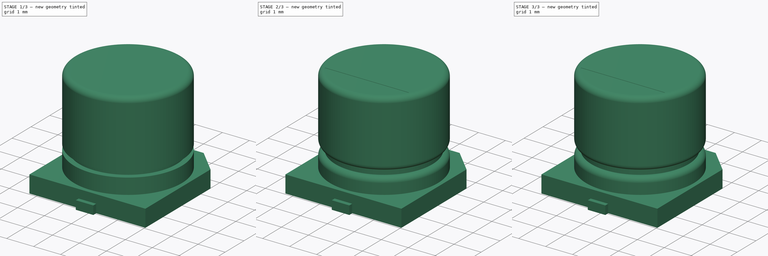
[diagram: build sequence overview — one tinted view per stage of 3, left to right]
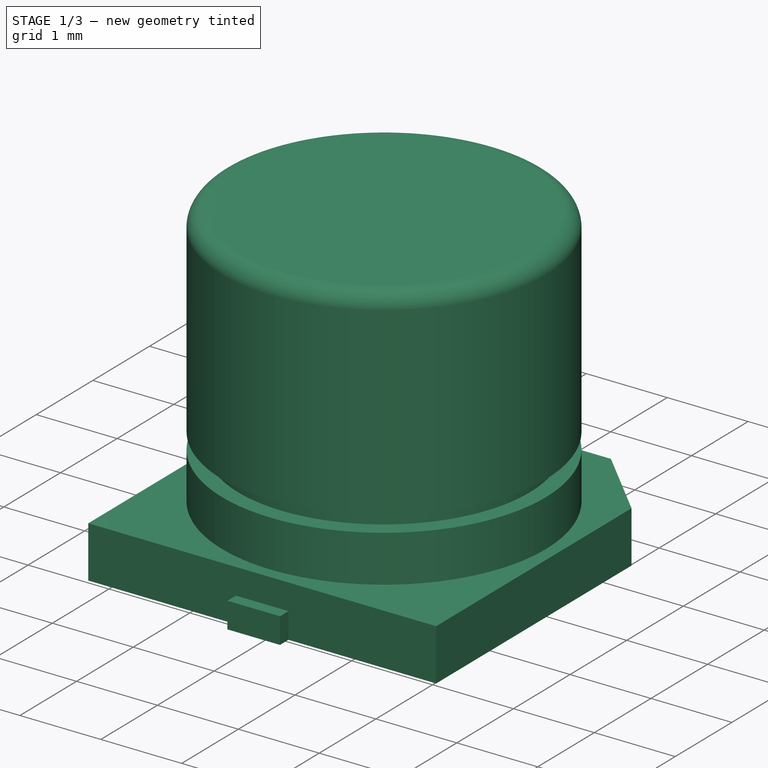
[diagram: stage 1 of 3 — iso view after this stage's code; geometry added in this stage tinted green]
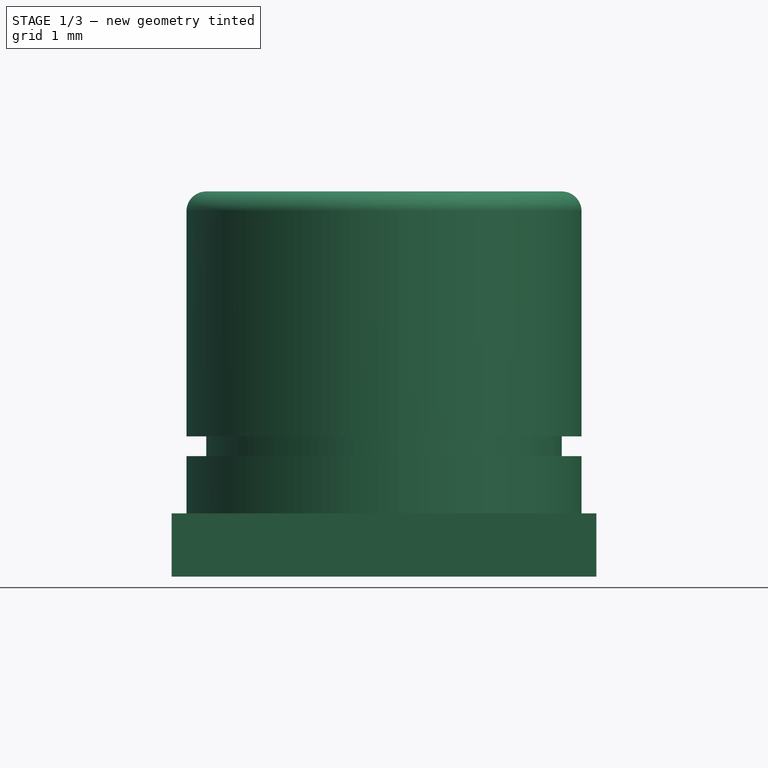
[diagram: stage 1 of 3 — front view after this stage's code; geometry added in this stage tinted green]
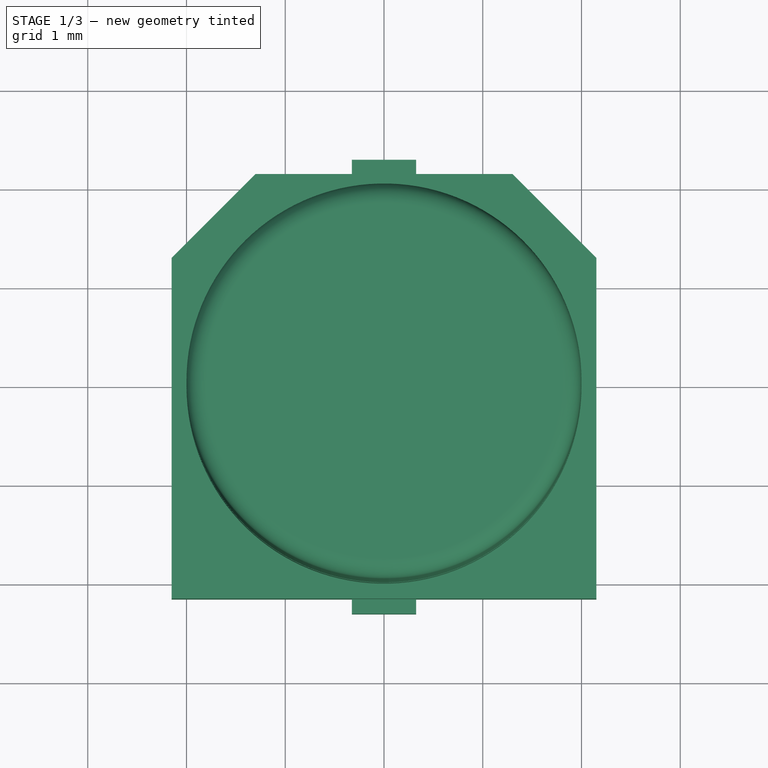
[diagram: stage 1 of 3 — top view after this stage's code; geometry added in this stage tinted green]
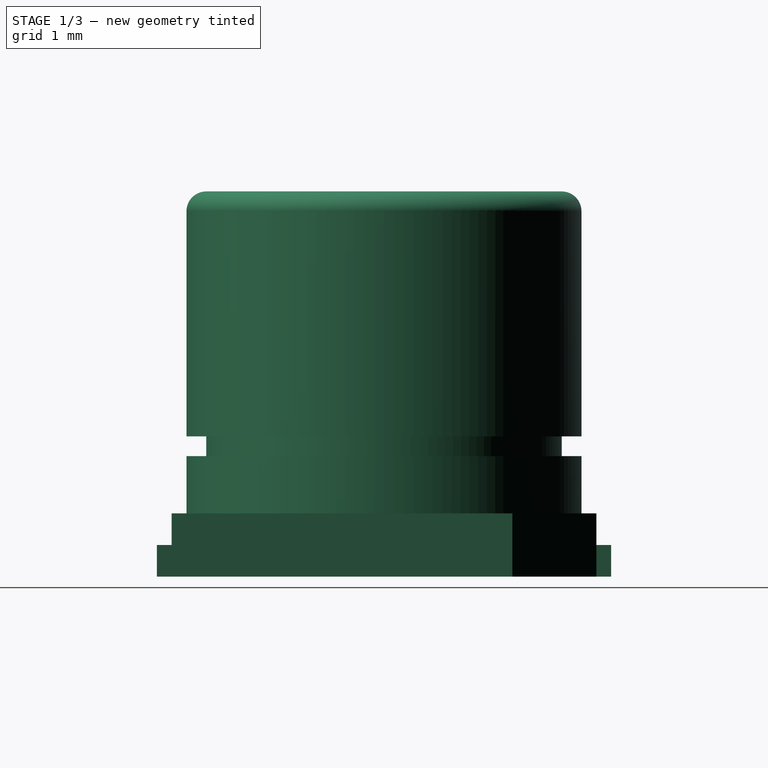
[diagram: stage 1 of 3 — right view after this stage's code; geometry added in this stage tinted green]
FCSTD DOCUMENT  (FreeCAD 0.14R3702 (Git))
Label: capsmd4x3
License: CC-BY 3.0
LicenseURL: http://creativecommons.org/licenses/by/3.0/
objects: Sketcher::SketchObject×5, Part::Feature×3, Part::Fillet×2, PartDesign::Pad×2, PartDesign::Pocket×2, PartDesign::Revolution×1, App::DocumentObjectGroup×1, Part::Compound×1
note: 21 computed .brp shape members not serialized (recipe doc carries the construction recipe); baked Part::Feature solids carry a one-line shape summary decoded from their .brp

FEATURE [Sketcher::SketchObject] Sketch  label="capsmd4x3-sketch"
  Placement = pos=(0,0,0) rot=(1,0,0;1.5708rad)
  sketch-geometry (8):
    g0: LineSegment StartX=0 StartY=0 StartZ=0 EndX=-2 EndY=0 EndZ=0
    g1: LineSegment StartX=-2 StartY=0 StartZ=0 EndX=-2 EndY=0.58 EndZ=0
    g2: LineSegment StartX=-1.8 StartY=0.58 StartZ=0 EndX=-1.8 EndY=0.78 EndZ=0
    g3: LineSegment StartX=-2 StartY=0.78 StartZ=0 EndX=-2 EndY=3.26 EndZ=0
    g4: LineSegment StartX=-2 StartY=3.26 StartZ=0 EndX=0 EndY=3.26 EndZ=0
    g5: LineSegment StartX=0 StartY=3.26 StartZ=0 EndX=0 EndY=0 EndZ=0
    g6: LineSegment StartX=-2 StartY=0.78 StartZ=0 EndX=-1.8 EndY=0.78 EndZ=0
    g7: LineSegment StartX=-2 StartY=0.58 StartZ=0 EndX=-1.8 EndY=0.58 EndZ=0
  constraints (23):
    c: Coincident(g0,g1)
    c: Vertical(g1)
    c: Vertical(g2)
    c: Vertical(g3)
    c: Horizontal(g4)
    c: Coincident(g4,g5)
    c: Coincident(g5,g-1)
    c: Vertical(g5)
    c: Coincident(g0,g-1)
    c: Horizontal(g0)
    c: DistanceX(g0) = -2
    c: DistanceY(g5) = -3.26
    c: DistanceY(g2) = 0.2
    c: DistanceY(g0,g2) = 0.58
    c: Coincident(g3,g4)
    c: Horizontal(g6)
    c: Coincident(g6,g3)
    c: Coincident(g6,g2)
    c: PointOnObject(g3,g1)
    c: DistanceX(g6) = 0.2
    c: Horizontal(g7)
    c: Coincident(g7,g1)
    c: Coincident(g7,g2)
FEATURE [PartDesign::Revolution] Revolution  label="cylinder"
  Angle = 360
  Axis = (0,0,1)
  Base = (0,0,0)
  Placement = pos=(0,0,0) rot=(1,0,0;1.5708rad)
  ReferenceAxis = -> Sketch [V_Axis]
  Sketch = -> Sketch
FEATURE [Part::Fillet] Fillet
  Base = -> Revolution
  Edges = 1 edges r=0.2: [Edge2]
FEATURE [App::DocumentObjectGroup] Group  label="src"
  Group = -> [Fillet001,Pad,Pocket,Pad001,Pocket002]
FEATURE [Part::Feature] Pocket003  label="cap-body"
  shape: bbox 4.33 x 4.33 x 3.26 mm, 13 faces (baked)
FEATURE [Part::Compound] Compound  label="capsmd4x3"
  Links = -> [Pad002,Pocket001,Pocket003]
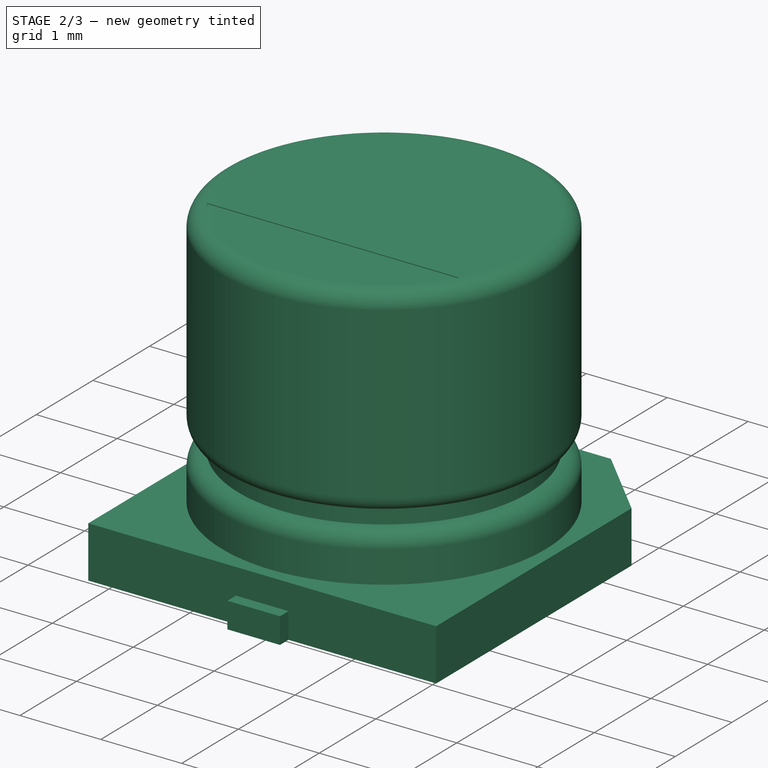
[diagram: stage 2 of 3 — iso view after this stage's code; geometry added in this stage tinted green]
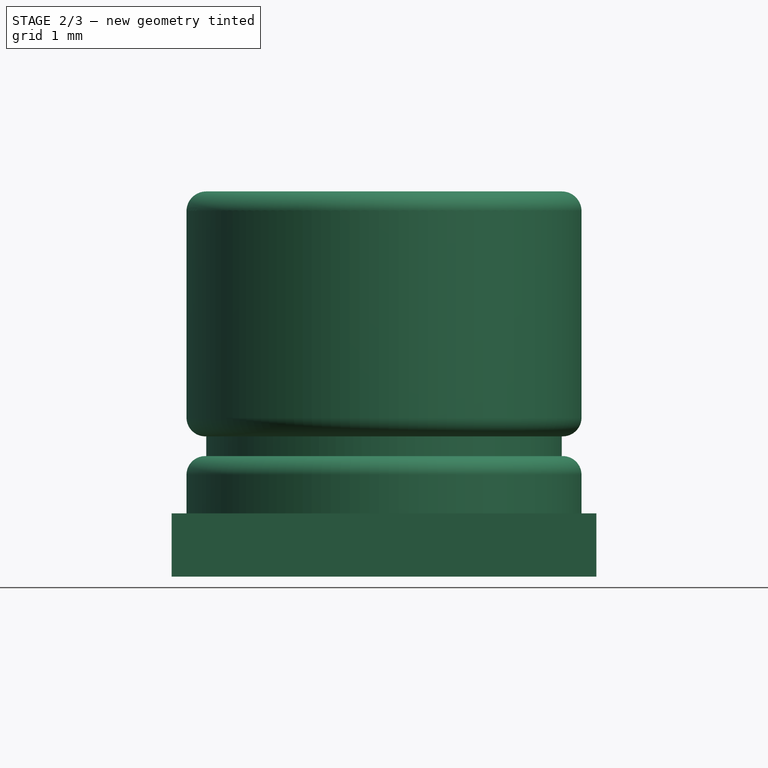
[diagram: stage 2 of 3 — front view after this stage's code; geometry added in this stage tinted green]
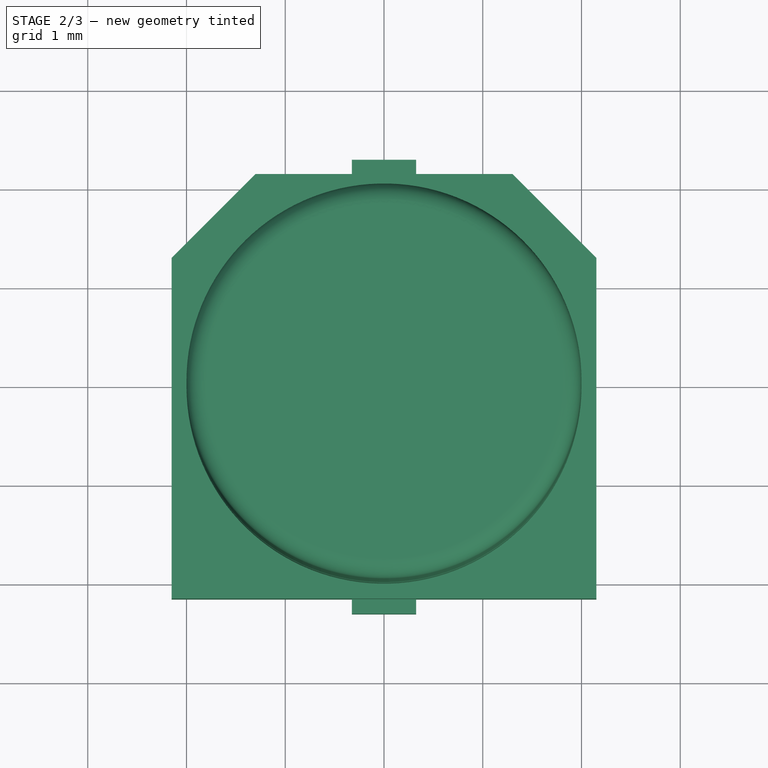
[diagram: stage 2 of 3 — top view after this stage's code; geometry added in this stage tinted green]
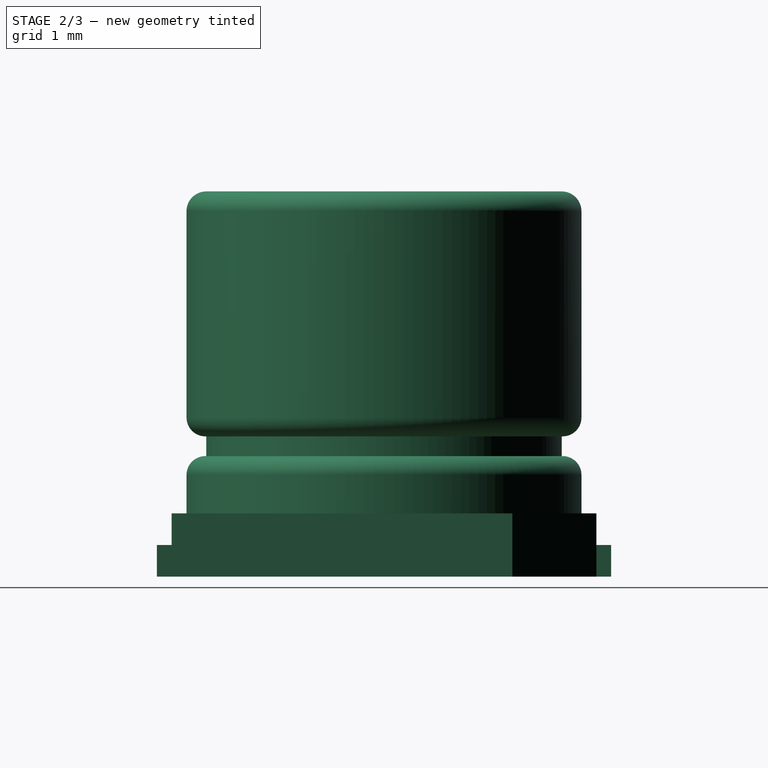
[diagram: stage 2 of 3 — right view after this stage's code; geometry added in this stage tinted green]
FEATURE [Part::Fillet] Fillet001  label="main-body001"
  Base = -> Fillet
  Edges = 2 edges r=0.19: [Edge3,Edge9]
FEATURE [Part::Feature] Pocket001  label="cap-base-final"
  shape: bbox 4.3 x 4.3 x 0.64 mm, 16 faces (baked)
FEATURE [Part::Feature] Pad002  label="cap-contacts"
  Placement = pos=(0,0,-0.64) rot=(0,0,1;0rad)
  shape: bbox 0.65 x 4.6 x 0.32 mm, 12 faces, 2 solids (baked)
FEATURE [Sketcher::SketchObject] Sketch004  label="top-mark-sketch"
  ExternalGeometry = -> [Fillet001]
  Placement = pos=(0,0,3.26) rot=(0,0,1;0rad)
  Support = -> Fillet001 [Face5]
  sketch-geometry (2):
    g0: LineSegment StartX=-1.55885 StartY=-0.9 StartZ=0 EndX=1.55885 EndY=-0.9 EndZ=0
    g1: ArcOfCircle CenterX=0 CenterY=0 CenterZ=0 NormalX=0 NormalY=0 NormalZ=1 Radius=1.8 StartAngle=3.66519 EndAngle=5.75959
  constraints (6):
    c: Horizontal(g0)
    c: Coincident(g1,g-1)
    c: Coincident(g0,g1)
    c: Coincident(g1,g0)
    c: Radius(g1) = 1.8
    c: DistanceY(g-1,g0) = -0.9
FEATURE [PartDesign::Pocket] Pocket002  label="top-mark"
  Length = 0.01
  Sketch = -> Sketch004
  Type = 0
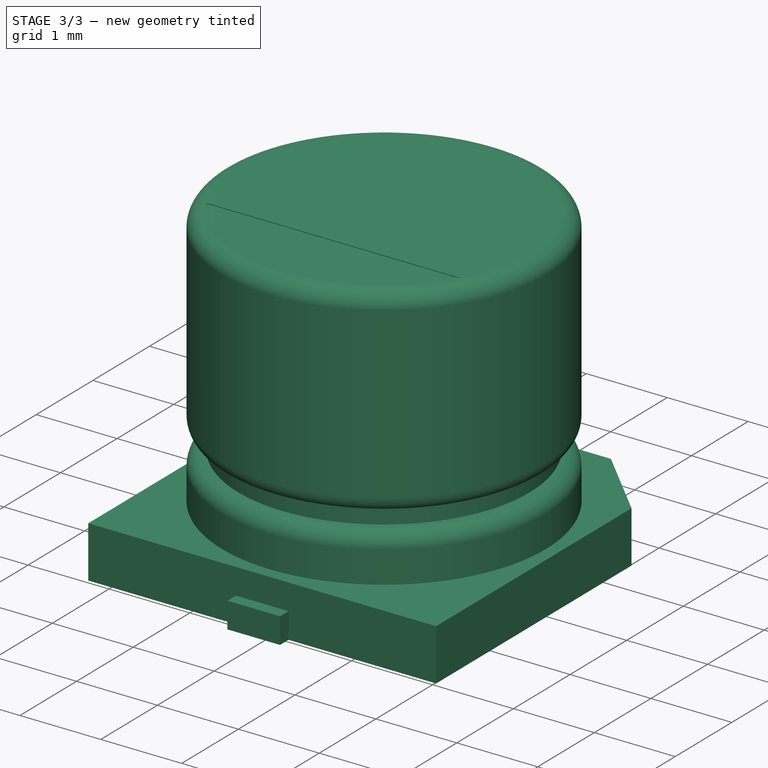
[diagram: stage 3 of 3 — iso view after this stage's code; geometry added in this stage tinted green]
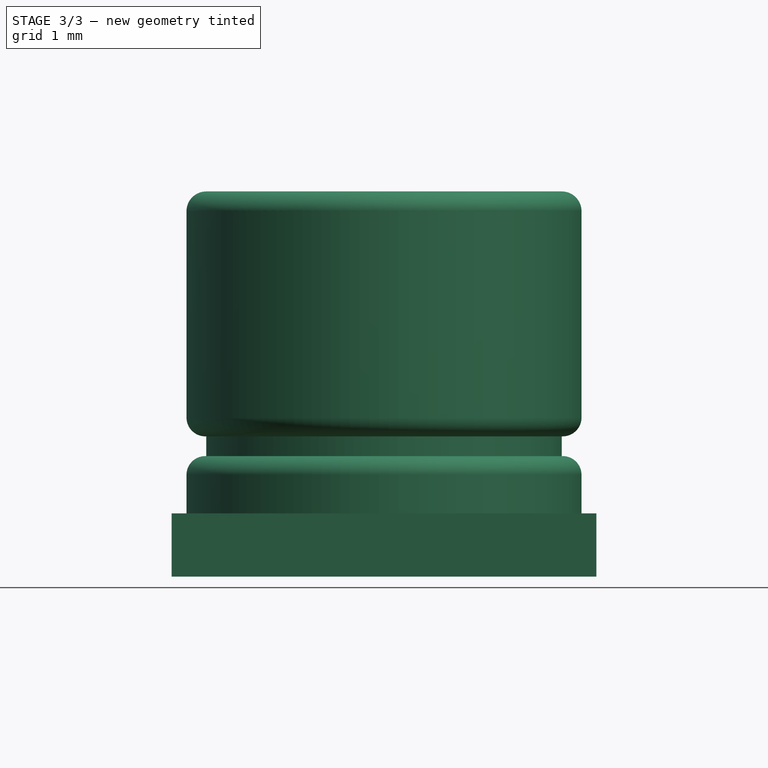
[diagram: stage 3 of 3 — front view after this stage's code; geometry added in this stage tinted green]
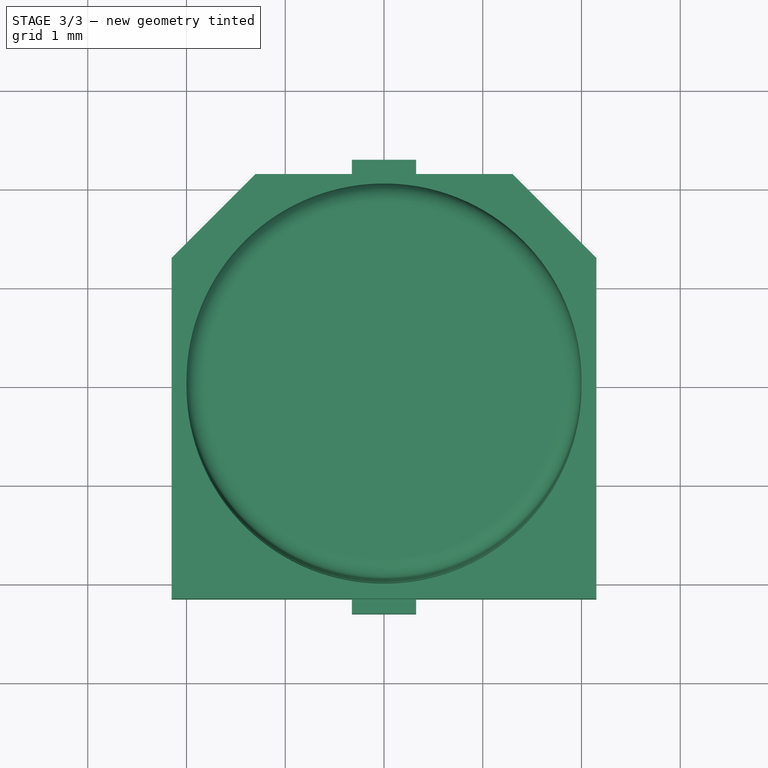
[diagram: stage 3 of 3 — top view after this stage's code; geometry added in this stage tinted green]
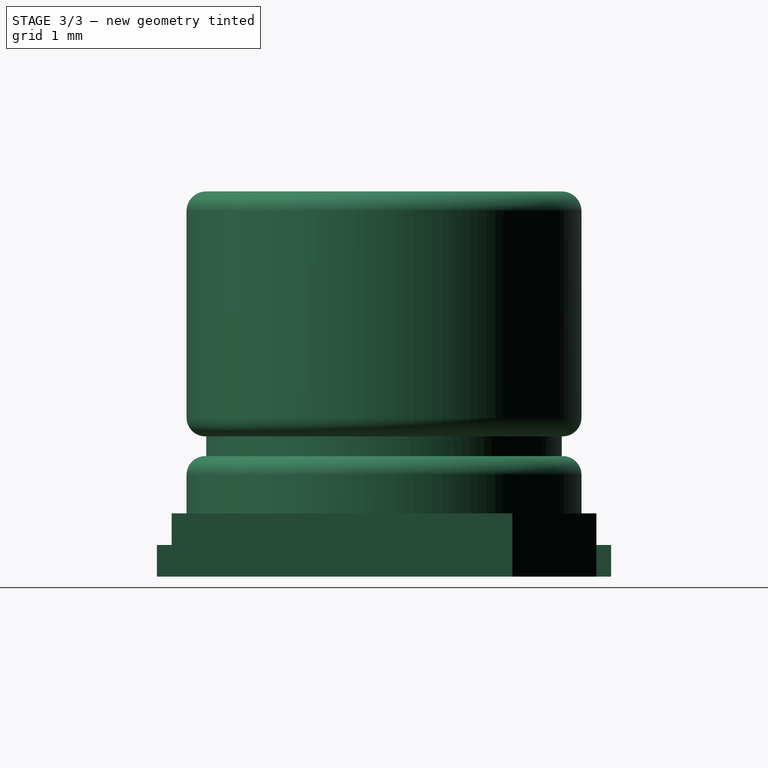
[diagram: stage 3 of 3 — right view after this stage's code; geometry added in this stage tinted green]
FEATURE [Sketcher::SketchObject] Sketch001  label="base-sketch"
  sketch-geometry (8):
    g0: LineSegment StartX=2.15 StartY=1.3 StartZ=0 EndX=2.15 EndY=-2.15 EndZ=0
    g1: LineSegment StartX=2.15 StartY=-2.15 StartZ=0 EndX=-2.15 EndY=-2.15 EndZ=0
    g2: LineSegment StartX=-2.15 StartY=-2.15 StartZ=0 EndX=-2.15 EndY=1.3 EndZ=0
    g3: LineSegment StartX=-2.15 StartY=1.3 StartZ=0 EndX=-1.3 EndY=2.15 EndZ=0
    g4: LineSegment StartX=-1.3 StartY=2.15 StartZ=0 EndX=1.3 EndY=2.15 EndZ=0
    g5: LineSegment StartX=1.3 StartY=2.15 StartZ=0 EndX=2.15 EndY=1.3 EndZ=0
    g6: LineSegment [constr] StartX=-2.15 StartY=1.3 StartZ=0 EndX=2.15 EndY=1.3 EndZ=0
    g7: LineSegment [constr] StartX=0 StartY=2.15 StartZ=0 EndX=0 EndY=-2.15 EndZ=0
  constraints (25):
    c: Coincident(g0,g1)
    c: Coincident(g1,g2)
    c: Horizontal(g1)
    c: Vertical(g0)
    c: Vertical(g2)
    c: Symmetric(g1,g0,g-2)
    c: Symmetric(g2,g0,g-2)
    c: Coincident(g3,g4)
    c: Coincident(g4,g5)
    c: Horizontal(g6)
    c: Coincident(g6,g2)
    c: Coincident(g6,g0)
    c: Coincident(g3,g2)
    c: Coincident(g5,g0)
    c: Angle(g6,g3) = 0.785398
    c: Horizontal(g4)
    c: Symmetric(g3,g4,g-2)
    c: DistanceX(g1) = -4.3
    c: Vertical(g7)
    c: PointOnObject(g7,g-2)
    c: PointOnObject(g7,g4)
    c: PointOnObject(g7,g1)
    c: Symmetric(g7,g7,g-1)
    c: DistanceY(g4,g0) = -4.3
    c: DistanceX(g4) = 2.6
FEATURE [PartDesign::Pad] Pad  label="base"
  Length = 0.64
  Length2 = 100
  Reversed = true
  Sketch = -> Sketch001
  Type = 0
FEATURE [Sketcher::SketchObject] Sketch002  label="base-cutout-1-sketch"
  Placement = pos=(0,0,-0.64) rot=(1,0,0;3.14159rad)
  Support = -> Pad [Face8]
  sketch-geometry (8):
    g0: LineSegment StartX=-0.325 StartY=2.3 StartZ=0 EndX=0.325 EndY=2.3 EndZ=0
    g1: LineSegment StartX=0.325 StartY=2.3 StartZ=0 EndX=0.325 EndY=0.5 EndZ=0
    g2: LineSegment StartX=0.325 StartY=0.5 StartZ=0 EndX=-0.325 EndY=0.5 EndZ=0
    g3: LineSegment StartX=-0.325 StartY=0.5 StartZ=0 EndX=-0.325 EndY=2.3 EndZ=0
    g4: LineSegment StartX=-0.325 StartY=-0.5 StartZ=0 EndX=0.325 EndY=-0.5 EndZ=0
    g5: LineSegment StartX=0.325 StartY=-0.5 StartZ=0 EndX=0.325 EndY=-2.3 EndZ=0
    g6: LineSegment StartX=0.325 StartY=-2.3 StartZ=0 EndX=-0.325 EndY=-2.3 EndZ=0
    g7: LineSegment StartX=-0.325 StartY=-2.3 StartZ=0 EndX=-0.325 EndY=-0.5 EndZ=0
  constraints (23):
    c: Coincident(g0,g1)
    c: Coincident(g1,g2)
    c: Coincident(g2,g3)
    c: Coincident(g3,g0)
    c: Horizontal(g0)
    c: Horizontal(g2)
    c: Vertical(g1)
    c: Vertical(g3)
    c: DistanceX(g0) = 0.65
    c: Symmetric(g0,g0,g-2)
    c: DistanceY(g1) = -1.8
    c: DistanceY(g-1,g1) = 0.5
    c: Coincident(g4,g5)
    c: Coincident(g5,g6)
    c: Coincident(g6,g7)
    c: Coincident(g7,g4)
    c: Horizontal(g4)
    c: Horizontal(g6)
    c: Vertical(g5)
    c: Vertical(g7)
    c: Symmetric(g4,g4,g-2)
    c: Symmetric(g2,g4,g-1)
    c: Symmetric(g5,g0,g-1)
FEATURE [PartDesign::Pocket] Pocket  label="base-cutout-1"
  Length = 0.32
  Sketch = -> Sketch002
  Type = 0
FEATURE [Sketcher::SketchObject] Sketch003  label="contacts-sketch"
  Placement = pos=(0,0,-0.64) rot=(0,0,1;0rad)
  sketch-geometry (8):
    g0: LineSegment StartX=-0.325 StartY=2.3 StartZ=0 EndX=0.325 EndY=2.3 EndZ=0
    g1: LineSegment StartX=0.325 StartY=2.3 StartZ=0 EndX=0.325 EndY=0.5 EndZ=0
    g2: LineSegment StartX=0.325 StartY=0.5 StartZ=0 EndX=-0.325 EndY=0.5 EndZ=0
    g3: LineSegment StartX=-0.325 StartY=0.5 StartZ=0 EndX=-0.325 EndY=2.3 EndZ=0
    g4: LineSegment StartX=-0.325 StartY=-0.5 StartZ=0 EndX=0.325 EndY=-0.5 EndZ=0
    g5: LineSegment StartX=0.325 StartY=-0.5 StartZ=0 EndX=0.325 EndY=-2.3 EndZ=0
    g6: LineSegment StartX=0.325 StartY=-2.3 StartZ=0 EndX=-0.325 EndY=-2.3 EndZ=0
    g7: LineSegment StartX=-0.325 StartY=-2.3 StartZ=0 EndX=-0.325 EndY=-0.5 EndZ=0
  constraints (23):
    c: Coincident(g0,g1)
    c: Coincident(g1,g2)
    c: Coincident(g2,g3)
    c: Coincident(g3,g0)
    c: Horizontal(g0)
    c: Horizontal(g2)
    c: Vertical(g1)
    c: Vertical(g3)
    c: Symmetric(g0,g0,g-2)
    c: DistanceX(g0) = 0.65
    c: DistanceY(g1) = -1.8
    c: DistanceY(g-1,g1) = 0.5
    c: Coincident(g4,g5)
    c: Coincident(g5,g6)
    c: Coincident(g6,g7)
    c: Coincident(g7,g4)
    c: Horizontal(g4)
    c: Horizontal(g6)
    c: Vertical(g5)
    c: Vertical(g7)
    c: Symmetric(g4,g4,g-2)
    c: Symmetric(g1,g4,g-1)
    c: Symmetric(g5,g0,g-1)
FEATURE [PartDesign::Pad] Pad001  label="contacts"
  Length = 0.32
  Length2 = 100
  Placement = pos=(0,0,-0.64) rot=(0,0,1;0rad)
  Sketch = -> Sketch003
  Type = 0
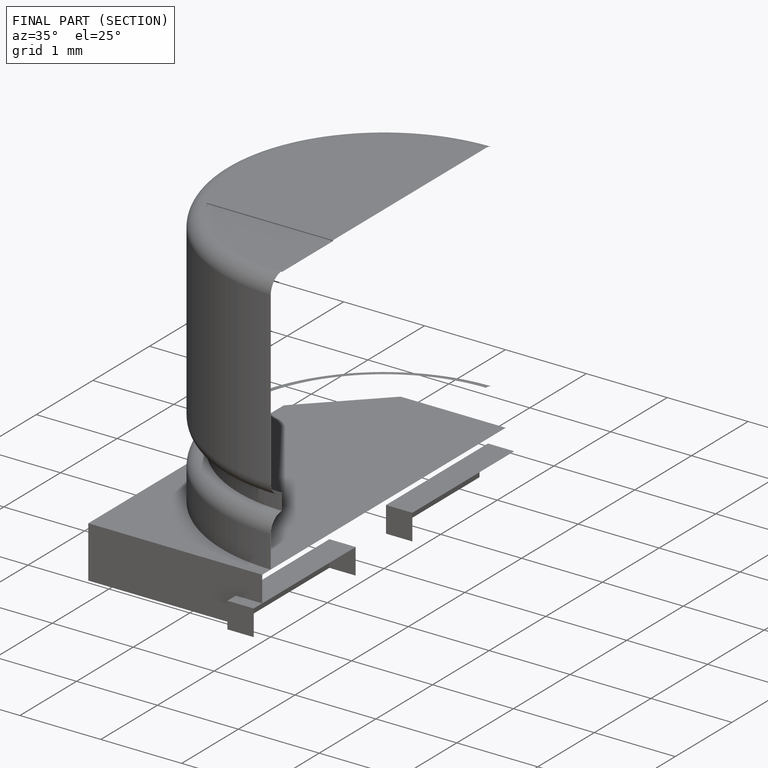
[diagram: finished part — half-section view (interior)]
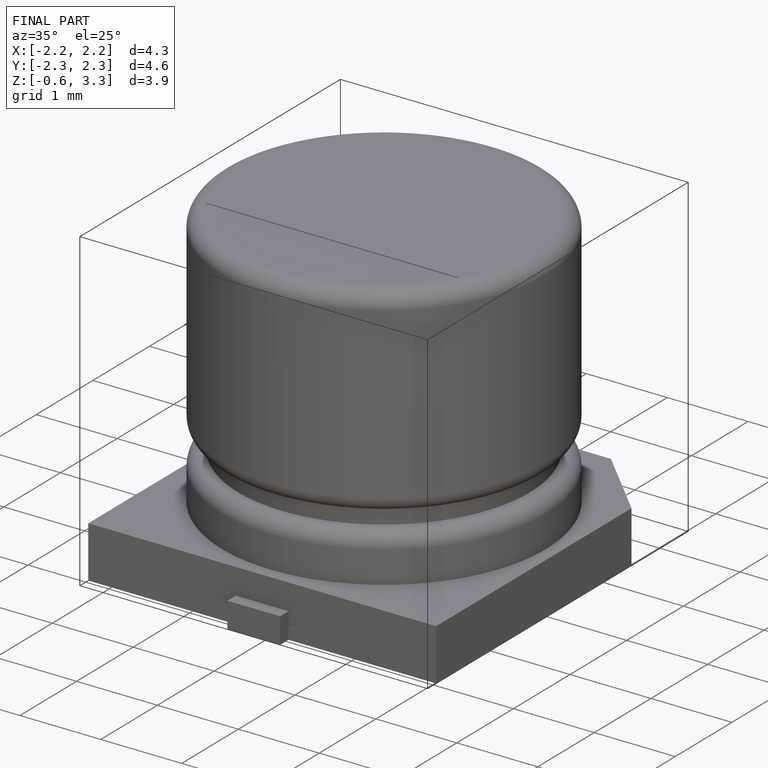
[diagram: finished part — iso view with bounding-box wireframe]
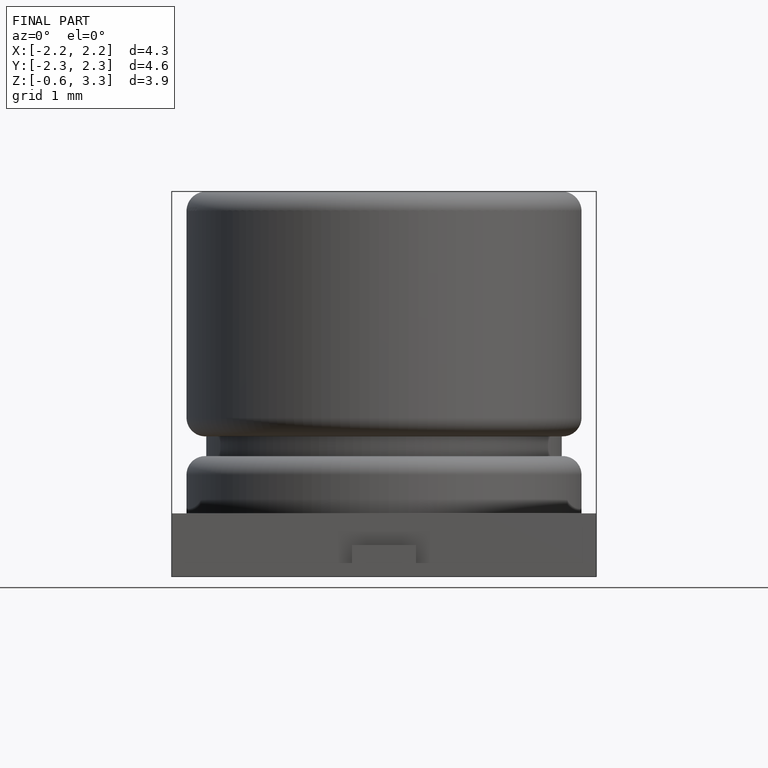
[diagram: finished part — front view with bounding-box wireframe]
